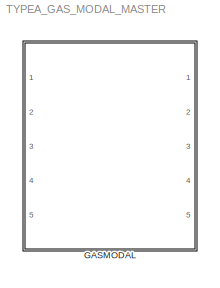
MODEL TYPEA_GAS_MODAL_MASTER
KIND library
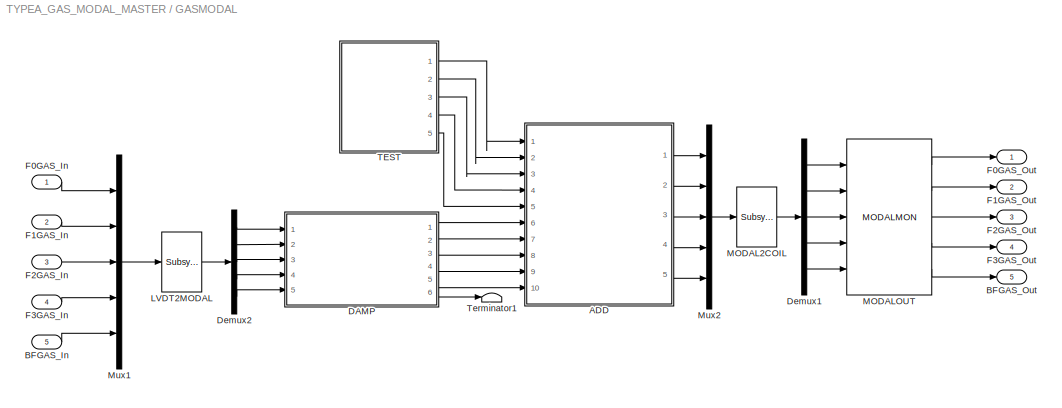
BLOCK [SubSystem] GASMODAL
  Ports = [5, 5]
  RequestExecContextInheritance = off
  SID = 2
  Variant = off
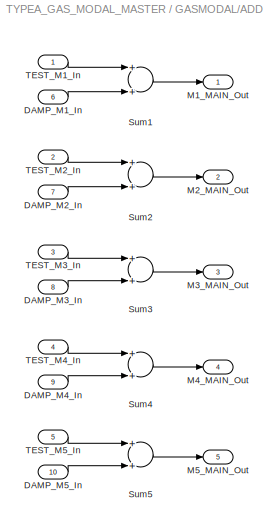
BLOCK [SubSystem] GASMODAL/ADD
  Ports = [10, 5]
  RequestExecContextInheritance = off
  SID = 37
  Variant = off
BLOCK [Inport] GASMODAL/ADD/DAMP_M1_In
  IconDisplay = Port number
  Port = 6
  SID = 41
BLOCK [Inport] GASMODAL/ADD/DAMP_M2_In
  IconDisplay = Port number
  Port = 7
  SID = 42
BLOCK [Inport] GASMODAL/ADD/DAMP_M3_In
  IconDisplay = Port number
  Port = 8
  SID = 43
BLOCK [Inport] GASMODAL/ADD/DAMP_M4_In
  IconDisplay = Port number
  Port = 9
  SID = 69
BLOCK [Inport] GASMODAL/ADD/DAMP_M5_In
  IconDisplay = Port number
  Port = 10
  SID = 70
BLOCK [Outport] GASMODAL/ADD/M1_MAIN_Out
  IconDisplay = Port number
  SID = 60
BLOCK [Outport] GASMODAL/ADD/M2_MAIN_Out
  IconDisplay = Port number
  Port = 2
  SID = 61
BLOCK [Outport] GASMODAL/ADD/M3_MAIN_Out
  IconDisplay = Port number
  Port = 3
  SID = 67
BLOCK [Outport] GASMODAL/ADD/M4_MAIN_Out
  IconDisplay = Port number
  Port = 4
  SID = 68
BLOCK [Outport] GASMODAL/ADD/M5_MAIN_Out
  IconDisplay = Port number
  Port = 5
  SID = 75
BLOCK [Sum] GASMODAL/ADD/Sum1
  InputSameDT = off
  OutDataTypeStr = Inherit: Inherit via internal rule
  Ports = [2, 1]
  SID = 57
  SaturateOnIntegerOverflow = off
BLOCK [Sum] GASMODAL/ADD/Sum2
  InputSameDT = off
  OutDataTypeStr = Inherit: Inherit via internal rule
  Ports = [2, 1]
  SID = 58
  SaturateOnIntegerOverflow = off
BLOCK [Sum] GASMODAL/ADD/Sum3
  InputSameDT = off
  OutDataTypeStr = Inherit: Inherit via internal rule
  Ports = [2, 1]
  SID = 65
  SaturateOnIntegerOverflow = off
BLOCK [Sum] GASMODAL/ADD/Sum4
  InputSameDT = off
  OutDataTypeStr = Inherit: Inherit via internal rule
  Ports = [2, 1]
  SID = 66
  SaturateOnIntegerOverflow = off
BLOCK [Sum] GASMODAL/ADD/Sum5
  InputSameDT = off
  OutDataTypeStr = Inherit: Inherit via internal rule
  Ports = [2, 1]
  SID = 74
  SaturateOnIntegerOverflow = off
BLOCK [Inport] GASMODAL/ADD/TEST_M1_In
  IconDisplay = Port number
  SID = 38
BLOCK [Inport] GASMODAL/ADD/TEST_M2_In
  IconDisplay = Port number
  Port = 2
  SID = 39
BLOCK [Inport] GASMODAL/ADD/TEST_M3_In
  IconDisplay = Port number
  Port = 3
  SID = 40
BLOCK [Inport] GASMODAL/ADD/TEST_M4_In
  IconDisplay = Port number
  Port = 4
  SID = 63
BLOCK [Inport] GASMODAL/ADD/TEST_M5_In
  IconDisplay = Port number
  Port = 5
  SID = 64
BLOCK [Inport] GASMODAL/BFGAS_In
  IconDisplay = Port number
  Port = 5
  SID = 8
BLOCK [Outport] GASMODAL/BFGAS_Out
  IconDisplay = Port number
  Port = 5
  SID = 15
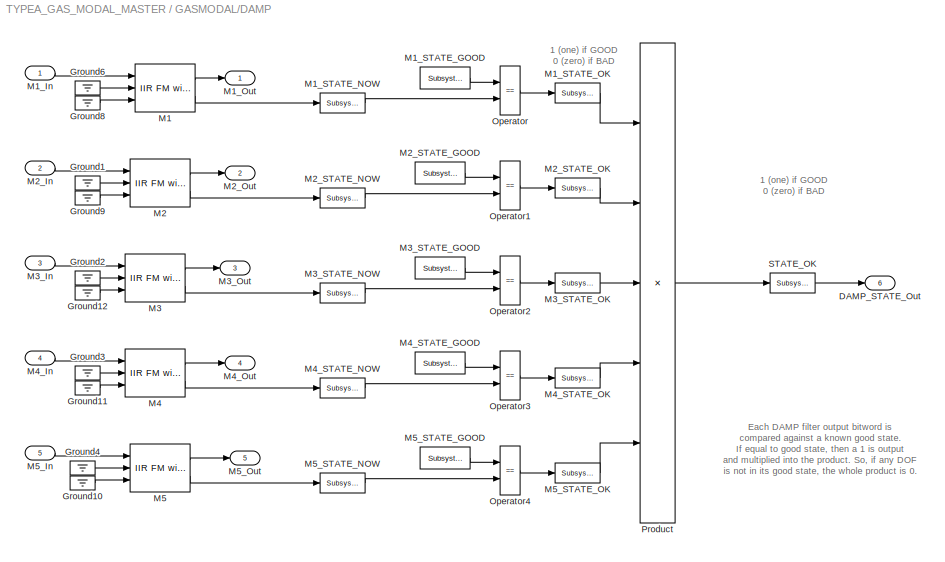
BLOCK [SubSystem] GASMODAL/DAMP
  Ports = [5, 6]
  RequestExecContextInheritance = off
  SID = 110
  Variant = off
BLOCK [Outport] GASMODAL/DAMP/DAMP_STATE_Out
  IconDisplay = Port number
  Port = 6
  SID = 167
BLOCK [Ground] GASMODAL/DAMP/Ground1
  SID = 117
BLOCK [Ground] GASMODAL/DAMP/Ground10
  SID = 118
BLOCK [Ground] GASMODAL/DAMP/Ground11
  SID = 119
BLOCK [Ground] GASMODAL/DAMP/Ground12
  SID = 120
BLOCK [Ground] GASMODAL/DAMP/Ground2
  SID = 121
BLOCK [Ground] GASMODAL/DAMP/Ground3
  SID = 122
BLOCK [Ground] GASMODAL/DAMP/Ground4
  SID = 123
BLOCK [Ground] GASMODAL/DAMP/Ground6
  SID = 125
BLOCK [Ground] GASMODAL/DAMP/Ground8
  SID = 127
BLOCK [Ground] GASMODAL/DAMP/Ground9
  SID = 128
BLOCK [Reference] GASMODAL/DAMP/M1  REF=cdsFiltCtrl/IIR FM with control
  AttributesFormatString = %<Tag>
  Description = cdsFiltCntrl is the standard IIR filter module (exactly the same as cdsFilt) but with added control data output 'Ctrl'. Filter module digital signal output appears on the first output, which is called 'Val'. 'Ctrl' output has a bit pattern encoding the state of filter's on/off switches (FM1 through FM10). The bit values are:\n                                                                        ...<+4621ch>  <repeated x5 — deduplicated; at blocks: M1, M2, M3, M4, M5>
  Ports = [3, 2]
  SID = 129
  SourceBlock = cdsFiltCtrl/IIR FM with control
  SourceType = SubSystem
  Tag = cdsFiltCtrl
BLOCK [Inport] GASMODAL/DAMP/M1_In
  IconDisplay = Port number
  SID = 111
BLOCK [Outport] GASMODAL/DAMP/M1_Out
  IconDisplay = Port number
  SID = 161
BLOCK [Reference] GASMODAL/DAMP/M1_STATE_GOOD  REF=cdsEpicsIn/Subsystem
  AttributesFormatString = %<Tag>
  Description = Purpose:                                                                              \nCreate an EPICS input channel connection to the FE realtime controls.                 \n                                                                                      \nOperation:                                                                            \nOutputs value from an EPICS ai record. Value is ...<+266ch>  <repeated x5 — deduplicated; at blocks: M1_STATE_GOOD, M2_STATE_GOOD, M3_STATE_GOOD, M4_STATE_GOOD, M5_STATE_GOOD>
  Ports = [0, 1]
  SID = 130
  SourceBlock = cdsEpicsIn/Subsystem
  SourceType = SubSystem
  Tag = cdsEpicsIn
BLOCK [Reference] GASMODAL/DAMP/M1_STATE_NOW  REF=cdsEpicsOut/Subsystem
  AttributesFormatString = %<Tag>
  Description = Purpose:                                          \nOutput a FE signal to an EPICS channel.           \n                                                  \nOperation:                                        \nTakes input value and passes it to EPICS record.  \n                                                  \nUsage:                                            \nName the part with the desired EPICS...<+14ch>  <repeated x11 — deduplicated; at blocks: M1_STATE_NOW, M1_STATE_OK, M2_STATE_NOW, M2_STATE_OK, M3_STATE_NOW, M3_STATE_OK, M4_STATE_NOW, M4_STATE_OK, M5_STATE_NOW, M5_STATE_OK, STATE_OK>
  Ports = [1, 1]
  SID = 131
  SourceBlock = cdsEpicsOut/Subsystem
  SourceType = SubSystem
  Tag = cdsEpicsOutput
BLOCK [Reference] GASMODAL/DAMP/M1_STATE_OK  REF=cdsEpicsOut/Subsystem
  AttributesFormatString = %<Tag>
  Ports = [1, 1]
  SID = 132
  SourceBlock = cdsEpicsOut/Subsystem
  SourceType = SubSystem
  Tag = cdsEpicsOutput
BLOCK [Reference] GASMODAL/DAMP/M2  REF=cdsFiltCtrl/IIR FM with control
  AttributesFormatString = %<Tag>
  Ports = [3, 2]
  SID = 149
  SourceBlock = cdsFiltCtrl/IIR FM with control
  SourceType = SubSystem
  Tag = cdsFiltCtrl
BLOCK [Inport] GASMODAL/DAMP/M2_In
  IconDisplay = Port number
  Port = 2
  SID = 112
BLOCK [Outport] GASMODAL/DAMP/M2_Out
  IconDisplay = Port number
  Port = 2
  SID = 162
BLOCK [Reference] GASMODAL/DAMP/M2_STATE_GOOD  REF=cdsEpicsIn/Subsystem
  AttributesFormatString = %<Tag>
  Ports = [0, 1]
  SID = 150
  SourceBlock = cdsEpicsIn/Subsystem
  SourceType = SubSystem
  Tag = cdsEpicsIn
BLOCK [Reference] GASMODAL/DAMP/M2_STATE_NOW  REF=cdsEpicsOut/Subsystem
  AttributesFormatString = %<Tag>
  Ports = [1, 1]
  SID = 151
  SourceBlock = cdsEpicsOut/Subsystem
  SourceType = SubSystem
  Tag = cdsEpicsOutput
BLOCK [Reference] GASMODAL/DAMP/M2_STATE_OK  REF=cdsEpicsOut/Subsystem
  AttributesFormatString = %<Tag>
  Ports = [1, 1]
  SID = 152
  SourceBlock = cdsEpicsOut/Subsystem
  SourceType = SubSystem
  Tag = cdsEpicsOutput
BLOCK [Reference] GASMODAL/DAMP/M3  REF=cdsFiltCtrl/IIR FM with control
  AttributesFormatString = %<Tag>
  Ports = [3, 2]
  SID = 153
  SourceBlock = cdsFiltCtrl/IIR FM with control
  SourceType = SubSystem
  Tag = cdsFiltCtrl
BLOCK [Inport] GASMODAL/DAMP/M3_In
  IconDisplay = Port number
  Port = 3
  SID = 113
BLOCK [Outport] GASMODAL/DAMP/M3_Out
  IconDisplay = Port number
  Port = 3
  SID = 163
BLOCK [Reference] GASMODAL/DAMP/M3_STATE_GOOD  REF=cdsEpicsIn/Subsystem
  AttributesFormatString = %<Tag>
  Ports = [0, 1]
  SID = 154
  SourceBlock = cdsEpicsIn/Subsystem
  SourceType = SubSystem
  Tag = cdsEpicsIn
BLOCK [Reference] GASMODAL/DAMP/M3_STATE_NOW  REF=cdsEpicsOut/Subsystem
  AttributesFormatString = %<Tag>
  Ports = [1, 1]
  SID = 155
  SourceBlock = cdsEpicsOut/Subsystem
  SourceType = SubSystem
  Tag = cdsEpicsOutput
BLOCK [Reference] GASMODAL/DAMP/M3_STATE_OK  REF=cdsEpicsOut/Subsystem
  AttributesFormatString = %<Tag>
  Ports = [1, 1]
  SID = 156
  SourceBlock = cdsEpicsOut/Subsystem
  SourceType = SubSystem
  Tag = cdsEpicsOutput
BLOCK [Reference] GASMODAL/DAMP/M4  REF=cdsFiltCtrl/IIR FM with control
  AttributesFormatString = %<Tag>
  Ports = [3, 2]
  SID = 144
  SourceBlock = cdsFiltCtrl/IIR FM with control
  SourceType = SubSystem
  Tag = cdsFiltCtrl
BLOCK [Inport] GASMODAL/DAMP/M4_In
  IconDisplay = Port number
  Port = 4
  SID = 114
BLOCK [Outport] GASMODAL/DAMP/M4_Out
  IconDisplay = Port number
  Port = 4
  SID = 164
BLOCK [Reference] GASMODAL/DAMP/M4_STATE_GOOD  REF=cdsEpicsIn/Subsystem
  AttributesFormatString = %<Tag>
  Ports = [0, 1]
  SID = 145
  SourceBlock = cdsEpicsIn/Subsystem
  SourceType = SubSystem
  Tag = cdsEpicsIn
BLOCK [Reference] GASMODAL/DAMP/M4_STATE_NOW  REF=cdsEpicsOut/Subsystem
  AttributesFormatString = %<Tag>
  Ports = [1, 1]
  SID = 146
  SourceBlock = cdsEpicsOut/Subsystem
  SourceType = SubSystem
  Tag = cdsEpicsOutput
BLOCK [Reference] GASMODAL/DAMP/M4_STATE_OK  REF=cdsEpicsOut/Subsystem
  AttributesFormatString = %<Tag>
  Ports = [1, 1]
  SID = 147
  SourceBlock = cdsEpicsOut/Subsystem
  SourceType = SubSystem
  Tag = cdsEpicsOutput
BLOCK [Reference] GASMODAL/DAMP/M5  REF=cdsFiltCtrl/IIR FM with control
  AttributesFormatString = %<Tag>
  Ports = [3, 2]
  SID = 139
  SourceBlock = cdsFiltCtrl/IIR FM with control
  SourceType = SubSystem
  Tag = cdsFiltCtrl
BLOCK [Inport] GASMODAL/DAMP/M5_In
  IconDisplay = Port number
  Port = 5
  SID = 115
BLOCK [Outport] GASMODAL/DAMP/M5_Out
  IconDisplay = Port number
  Port = 5
  SID = 165
BLOCK [Reference] GASMODAL/DAMP/M5_STATE_GOOD  REF=cdsEpicsIn/Subsystem
  AttributesFormatString = %<Tag>
  Ports = [0, 1]
  SID = 140
  SourceBlock = cdsEpicsIn/Subsystem
  SourceType = SubSystem
  Tag = cdsEpicsIn
BLOCK [Reference] GASMODAL/DAMP/M5_STATE_NOW  REF=cdsEpicsOut/Subsystem
  AttributesFormatString = %<Tag>
  Ports = [1, 1]
  SID = 141
  SourceBlock = cdsEpicsOut/Subsystem
  SourceType = SubSystem
  Tag = cdsEpicsOutput
BLOCK [Reference] GASMODAL/DAMP/M5_STATE_OK  REF=cdsEpicsOut/Subsystem
  AttributesFormatString = %<Tag>
  Ports = [1, 1]
  SID = 142
  SourceBlock = cdsEpicsOut/Subsystem
  SourceType = SubSystem
  Tag = cdsEpicsOutput
BLOCK [RelationalOperator] GASMODAL/DAMP/Operator
  InputSameDT = off
  Operator = ==
  OutDataTypeStr = boolean
  Ports = [2, 1]
  SID = 133
BLOCK [RelationalOperator] GASMODAL/DAMP/Operator1
  InputSameDT = off
  Operator = ==
  OutDataTypeStr = boolean
  Ports = [2, 1]
  SID = 134
BLOCK [RelationalOperator] GASMODAL/DAMP/Operator2
  InputSameDT = off
  Operator = ==
  OutDataTypeStr = boolean
  Ports = [2, 1]
  SID = 135
BLOCK [RelationalOperator] GASMODAL/DAMP/Operator3
  InputSameDT = off
  Operator = ==
  OutDataTypeStr = boolean
  Ports = [2, 1]
  SID = 136
BLOCK [RelationalOperator] GASMODAL/DAMP/Operator4
  InputSameDT = off
  Operator = ==
  OutDataTypeStr = boolean
  Ports = [2, 1]
  SID = 137
BLOCK [Product] GASMODAL/DAMP/Product
  InputSameDT = off
  Inputs = 5
  OutDataTypeStr = Inherit: Inherit via internal rule
  Ports = [5, 1]
  SID = 143
  SaturateOnIntegerOverflow = off
BLOCK [Reference] GASMODAL/DAMP/STATE_OK  REF=cdsEpicsOut/Subsystem
  AttributesFormatString = %<Tag>
  Ports = [1, 1]
  SID = 148
  SourceBlock = cdsEpicsOut/Subsystem
  SourceType = SubSystem
  Tag = cdsEpicsOutput
BLOCK [Demux] GASMODAL/Demux1
  DisplayOption = bar
  Outputs = 5
  Ports = [1, 5]
  SID = 174
BLOCK [Demux] GASMODAL/Demux2
  DisplayOption = bar
  Outputs = 5
  Ports = [1, 5]
  SID = 78
BLOCK [Inport] GASMODAL/F0GAS_In
  IconDisplay = Port number
  SID = 3
BLOCK [Outport] GASMODAL/F0GAS_Out
  IconDisplay = Port number
  SID = 4
BLOCK [Inport] GASMODAL/F1GAS_In
  IconDisplay = Port number
  Port = 2
  SID = 5
BLOCK [Outport] GASMODAL/F1GAS_Out
  IconDisplay = Port number
  Port = 2
  SID = 12
BLOCK [Inport] GASMODAL/F2GAS_In
  IconDisplay = Port number
  Port = 3
  SID = 6
BLOCK [Outport] GASMODAL/F2GAS_Out
  IconDisplay = Port number
  Port = 3
  SID = 13
BLOCK [Inport] GASMODAL/F3GAS_In
  IconDisplay = Port number
  Port = 4
  SID = 7
BLOCK [Outport] GASMODAL/F3GAS_Out
  IconDisplay = Port number
  Port = 4
  SID = 14
BLOCK [Reference] GASMODAL/LVDT2MODAL  REF=cdsMuxMatrix/Subsystem
  AttributesFormatString = %<Tag>
  Description = Any size matrix. Inputs and outputs must be connected using Mux and Demux parts.
  Ports = [1, 1]
  SID = 76
  SourceBlock = cdsMuxMatrix/Subsystem
  SourceType = SubSystem
  Tag = cdsMuxMatrix
BLOCK [Reference] GASMODAL/MODAL2COIL  REF=cdsMuxMatrix/Subsystem
  AttributesFormatString = %<Tag>
  Description = Any size matrix. Inputs and outputs must be connected using Mux and Demux parts.
  Ports = [1, 1]
  SID = 36
  SourceBlock = cdsMuxMatrix/Subsystem
  SourceType = SubSystem
  Tag = cdsMuxMatrix
BLOCK [Reference] GASMODAL/MODALOUT  REF=VIS_LIB/MODALMON
  Ports = [5, 5]
  SID = 109
  SourceBlock = VIS_LIB/MODALMON
  SourceType = SubSystem
BLOCK [Mux] GASMODAL/Mux1
  DisplayOption = bar
  Inputs = 5
  Ports = [5, 1]
  SID = 10
BLOCK [Mux] GASMODAL/Mux2
  DisplayOption = bar
  Inputs = 5
  Ports = [5, 1]
  SID = 173
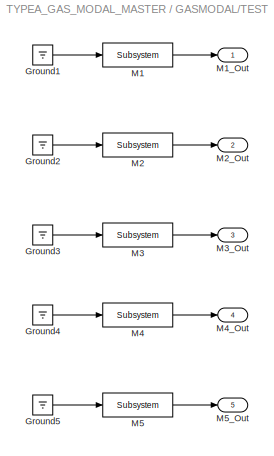
BLOCK [SubSystem] GASMODAL/TEST
  Ports = [0, 5]
  RequestExecContextInheritance = off
  SID = 17
  Variant = off
BLOCK [Ground] GASMODAL/TEST/Ground1
  SID = 18
BLOCK [Ground] GASMODAL/TEST/Ground2
  SID = 19
BLOCK [Ground] GASMODAL/TEST/Ground3
  SID = 20
BLOCK [Ground] GASMODAL/TEST/Ground4
  SID = 27
BLOCK [Ground] GASMODAL/TEST/Ground5
  SID = 28
BLOCK [Reference] GASMODAL/TEST/M1  REF=cdsFilt/Subsystem
  AttributesFormatString = %<Tag>
  Description = Purpose:                                                                                                                                                                                                                                  \nStandard CDS IIR filter module.                                                                                                                                     ...<+1302ch>  <repeated x5 — deduplicated; at blocks: M1, M2, M3, M4, M5>
  Ports = [1, 1]
  SID = 21
  SourceBlock = cdsFilt/Subsystem
  SourceType = SubSystem
  Tag = cdsFilt
BLOCK [Outport] GASMODAL/TEST/M1_Out
  IconDisplay = Port number
  SID = 24
BLOCK [Reference] GASMODAL/TEST/M2  REF=cdsFilt/Subsystem
  AttributesFormatString = %<Tag>
  Ports = [1, 1]
  SID = 22
  SourceBlock = cdsFilt/Subsystem
  SourceType = SubSystem
  Tag = cdsFilt
BLOCK [Outport] GASMODAL/TEST/M2_Out
  IconDisplay = Port number
  Port = 2
  SID = 25
BLOCK [Reference] GASMODAL/TEST/M3  REF=cdsFilt/Subsystem
  AttributesFormatString = %<Tag>
  Ports = [1, 1]
  SID = 23
  SourceBlock = cdsFilt/Subsystem
  SourceType = SubSystem
  Tag = cdsFilt
BLOCK [Outport] GASMODAL/TEST/M3_Out
  IconDisplay = Port number
  Port = 3
  SID = 26
BLOCK [Reference] GASMODAL/TEST/M4  REF=cdsFilt/Subsystem
  AttributesFormatString = %<Tag>
  Ports = [1, 1]
  SID = 29
  SourceBlock = cdsFilt/Subsystem
  SourceType = SubSystem
  Tag = cdsFilt
BLOCK [Outport] GASMODAL/TEST/M4_Out
  IconDisplay = Port number
  Port = 4
  SID = 31
BLOCK [Reference] GASMODAL/TEST/M5  REF=cdsFilt/Subsystem
  AttributesFormatString = %<Tag>
  Ports = [1, 1]
  SID = 30
  SourceBlock = cdsFilt/Subsystem
  SourceType = SubSystem
  Tag = cdsFilt
BLOCK [Outport] GASMODAL/TEST/M5_Out
  IconDisplay = Port number
  Port = 5
  SID = 32
BLOCK [Terminator] GASMODAL/Terminator1
  SID = 172
ANNOTATION GASMODAL/DAMP: 1 (one) if GOOD\n0 (zero) if BAD
ANNOTATION GASMODAL/DAMP: Each DAMP filter output bitword is \ncompared against a known good state.\nIf equal to good state, then a 1 is output \nand multiplied into the product. So, if any DOF\nis not in its good state, the whole product is 0.
LINE GASMODAL/ADD/DAMP_M1_In:1 -> GASMODAL/ADD/Sum1:2
LINE GASMODAL/ADD/DAMP_M2_In:1 -> GASMODAL/ADD/Sum2:2
LINE GASMODAL/ADD/DAMP_M3_In:1 -> GASMODAL/ADD/Sum3:2
LINE GASMODAL/ADD/DAMP_M4_In:1 -> GASMODAL/ADD/Sum4:2
LINE GASMODAL/ADD/DAMP_M5_In:1 -> GASMODAL/ADD/Sum5:2
LINE GASMODAL/ADD/Sum1:1 -> GASMODAL/ADD/M1_MAIN_Out:1
LINE GASMODAL/ADD/Sum2:1 -> GASMODAL/ADD/M2_MAIN_Out:1
LINE GASMODAL/ADD/Sum3:1 -> GASMODAL/ADD/M3_MAIN_Out:1
LINE GASMODAL/ADD/Sum4:1 -> GASMODAL/ADD/M4_MAIN_Out:1
LINE GASMODAL/ADD/Sum5:1 -> GASMODAL/ADD/M5_MAIN_Out:1
LINE GASMODAL/ADD/TEST_M1_In:1 -> GASMODAL/ADD/Sum1:1
LINE GASMODAL/ADD/TEST_M2_In:1 -> GASMODAL/ADD/Sum2:1
LINE GASMODAL/ADD/TEST_M3_In:1 -> GASMODAL/ADD/Sum3:1
LINE GASMODAL/ADD/TEST_M4_In:1 -> GASMODAL/ADD/Sum4:1
LINE GASMODAL/ADD/TEST_M5_In:1 -> GASMODAL/ADD/Sum5:1
LINE GASMODAL/ADD:1 -> GASMODAL/Mux2:1
LINE GASMODAL/ADD:2 -> GASMODAL/Mux2:2
LINE GASMODAL/ADD:3 -> GASMODAL/Mux2:3
LINE GASMODAL/ADD:4 -> GASMODAL/Mux2:4
LINE GASMODAL/ADD:5 -> GASMODAL/Mux2:5
LINE GASMODAL/BFGAS_In:1 -> GASMODAL/Mux1:5
LINE GASMODAL/DAMP/Ground10:1 -> GASMODAL/DAMP/M5:3
LINE GASMODAL/DAMP/Ground11:1 -> GASMODAL/DAMP/M4:3
LINE GASMODAL/DAMP/Ground12:1 -> GASMODAL/DAMP/M3:3
LINE GASMODAL/DAMP/Ground1:1 -> GASMODAL/DAMP/M2:2
LINE GASMODAL/DAMP/Ground2:1 -> GASMODAL/DAMP/M3:2
LINE GASMODAL/DAMP/Ground3:1 -> GASMODAL/DAMP/M4:2
LINE GASMODAL/DAMP/Ground4:1 -> GASMODAL/DAMP/M5:2
LINE GASMODAL/DAMP/Ground6:1 -> GASMODAL/DAMP/M1:2
LINE GASMODAL/DAMP/Ground8:1 -> GASMODAL/DAMP/M1:3
LINE GASMODAL/DAMP/Ground9:1 -> GASMODAL/DAMP/M2:3
LINE GASMODAL/DAMP/M1:1 -> GASMODAL/DAMP/M1_Out:1
LINE GASMODAL/DAMP/M1:2 -> GASMODAL/DAMP/M1_STATE_NOW:1
LINE GASMODAL/DAMP/M1_In:1 -> GASMODAL/DAMP/M1:1
LINE GASMODAL/DAMP/M1_STATE_GOOD:1 -> GASMODAL/DAMP/Operator:1
LINE GASMODAL/DAMP/M1_STATE_NOW:1 -> GASMODAL/DAMP/Operator:2
LINE GASMODAL/DAMP/M1_STATE_OK:1 -> GASMODAL/DAMP/Product:1
LINE GASMODAL/DAMP/M2:1 -> GASMODAL/DAMP/M2_Out:1
LINE GASMODAL/DAMP/M2:2 -> GASMODAL/DAMP/M2_STATE_NOW:1
LINE GASMODAL/DAMP/M2_In:1 -> GASMODAL/DAMP/M2:1
LINE GASMODAL/DAMP/M2_STATE_GOOD:1 -> GASMODAL/DAMP/Operator1:1
LINE GASMODAL/DAMP/M2_STATE_NOW:1 -> GASMODAL/DAMP/Operator1:2
LINE GASMODAL/DAMP/M2_STATE_OK:1 -> GASMODAL/DAMP/Product:2
LINE GASMODAL/DAMP/M3:1 -> GASMODAL/DAMP/M3_Out:1
LINE GASMODAL/DAMP/M3:2 -> GASMODAL/DAMP/M3_STATE_NOW:1
LINE GASMODAL/DAMP/M3_In:1 -> GASMODAL/DAMP/M3:1
LINE GASMODAL/DAMP/M3_STATE_GOOD:1 -> GASMODAL/DAMP/Operator2:1
LINE GASMODAL/DAMP/M3_STATE_NOW:1 -> GASMODAL/DAMP/Operator2:2
LINE GASMODAL/DAMP/M3_STATE_OK:1 -> GASMODAL/DAMP/Product:3
LINE GASMODAL/DAMP/M4:1 -> GASMODAL/DAMP/M4_Out:1
LINE GASMODAL/DAMP/M4:2 -> GASMODAL/DAMP/M4_STATE_NOW:1
LINE GASMODAL/DAMP/M4_In:1 -> GASMODAL/DAMP/M4:1
LINE GASMODAL/DAMP/M4_STATE_GOOD:1 -> GASMODAL/DAMP/Operator3:1
LINE GASMODAL/DAMP/M4_STATE_NOW:1 -> GASMODAL/DAMP/Operator3:2
LINE GASMODAL/DAMP/M4_STATE_OK:1 -> GASMODAL/DAMP/Product:4
LINE GASMODAL/DAMP/M5:1 -> GASMODAL/DAMP/M5_Out:1
LINE GASMODAL/DAMP/M5:2 -> GASMODAL/DAMP/M5_STATE_NOW:1
LINE GASMODAL/DAMP/M5_In:1 -> GASMODAL/DAMP/M5:1
LINE GASMODAL/DAMP/M5_STATE_GOOD:1 -> GASMODAL/DAMP/Operator4:1
LINE GASMODAL/DAMP/M5_STATE_NOW:1 -> GASMODAL/DAMP/Operator4:2
LINE GASMODAL/DAMP/M5_STATE_OK:1 -> GASMODAL/DAMP/Product:5
LINE GASMODAL/DAMP/Operator1:1 -> GASMODAL/DAMP/M2_STATE_OK:1
LINE GASMODAL/DAMP/Operator2:1 -> GASMODAL/DAMP/M3_STATE_OK:1
LINE GASMODAL/DAMP/Operator3:1 -> GASMODAL/DAMP/M4_STATE_OK:1
LINE GASMODAL/DAMP/Operator4:1 -> GASMODAL/DAMP/M5_STATE_OK:1
LINE GASMODAL/DAMP/Operator:1 -> GASMODAL/DAMP/M1_STATE_OK:1
LINE GASMODAL/DAMP/Product:1 -> GASMODAL/DAMP/STATE_OK:1
LINE GASMODAL/DAMP/STATE_OK:1 -> GASMODAL/DAMP/DAMP_STATE_Out:1
LINE GASMODAL/DAMP:1 -> GASMODAL/ADD:6
LINE GASMODAL/DAMP:2 -> GASMODAL/ADD:7
LINE GASMODAL/DAMP:3 -> GASMODAL/ADD:8
LINE GASMODAL/DAMP:4 -> GASMODAL/ADD:9
LINE GASMODAL/DAMP:5 -> GASMODAL/ADD:10
LINE GASMODAL/DAMP:6 -> GASMODAL/Terminator1:1
LINE GASMODAL/Demux1:1 -> GASMODAL/MODALOUT:1
LINE GASMODAL/Demux1:2 -> GASMODAL/MODALOUT:2
LINE GASMODAL/Demux1:3 -> GASMODAL/MODALOUT:3
LINE GASMODAL/Demux1:4 -> GASMODAL/MODALOUT:4
LINE GASMODAL/Demux1:5 -> GASMODAL/MODALOUT:5
LINE GASMODAL/Demux2:1 -> GASMODAL/DAMP:1
LINE GASMODAL/Demux2:2 -> GASMODAL/DAMP:2
LINE GASMODAL/Demux2:3 -> GASMODAL/DAMP:3
LINE GASMODAL/Demux2:4 -> GASMODAL/DAMP:4
LINE GASMODAL/Demux2:5 -> GASMODAL/DAMP:5
LINE GASMODAL/F0GAS_In:1 -> GASMODAL/Mux1:1
LINE GASMODAL/F1GAS_In:1 -> GASMODAL/Mux1:2
LINE GASMODAL/F2GAS_In:1 -> GASMODAL/Mux1:3
LINE GASMODAL/F3GAS_In:1 -> GASMODAL/Mux1:4
LINE GASMODAL/LVDT2MODAL:1 -> GASMODAL/Demux2:1
LINE GASMODAL/MODAL2COIL:1 -> GASMODAL/Demux1:1
LINE GASMODAL/MODALOUT:1 -> GASMODAL/F0GAS_Out:1
LINE GASMODAL/MODALOUT:2 -> GASMODAL/F1GAS_Out:1
LINE GASMODAL/MODALOUT:3 -> GASMODAL/F2GAS_Out:1
LINE GASMODAL/MODALOUT:4 -> GASMODAL/F3GAS_Out:1
LINE GASMODAL/MODALOUT:5 -> GASMODAL/BFGAS_Out:1
LINE GASMODAL/Mux1:1 -> GASMODAL/LVDT2MODAL:1
LINE GASMODAL/Mux2:1 -> GASMODAL/MODAL2COIL:1
LINE GASMODAL/TEST/Ground1:1 -> GASMODAL/TEST/M1:1
LINE GASMODAL/TEST/Ground2:1 -> GASMODAL/TEST/M2:1
LINE GASMODAL/TEST/Ground3:1 -> GASMODAL/TEST/M3:1
LINE GASMODAL/TEST/Ground4:1 -> GASMODAL/TEST/M4:1
LINE GASMODAL/TEST/Ground5:1 -> GASMODAL/TEST/M5:1
LINE GASMODAL/TEST/M1:1 -> GASMODAL/TEST/M1_Out:1
LINE GASMODAL/TEST/M2:1 -> GASMODAL/TEST/M2_Out:1
LINE GASMODAL/TEST/M3:1 -> GASMODAL/TEST/M3_Out:1
LINE GASMODAL/TEST/M4:1 -> GASMODAL/TEST/M4_Out:1
LINE GASMODAL/TEST/M5:1 -> GASMODAL/TEST/M5_Out:1
LINE GASMODAL/TEST:1 -> GASMODAL/ADD:1
LINE GASMODAL/TEST:2 -> GASMODAL/ADD:2
LINE GASMODAL/TEST:3 -> GASMODAL/ADD:3
LINE GASMODAL/TEST:4 -> GASMODAL/ADD:4
LINE GASMODAL/TEST:5 -> GASMODAL/ADD:5
